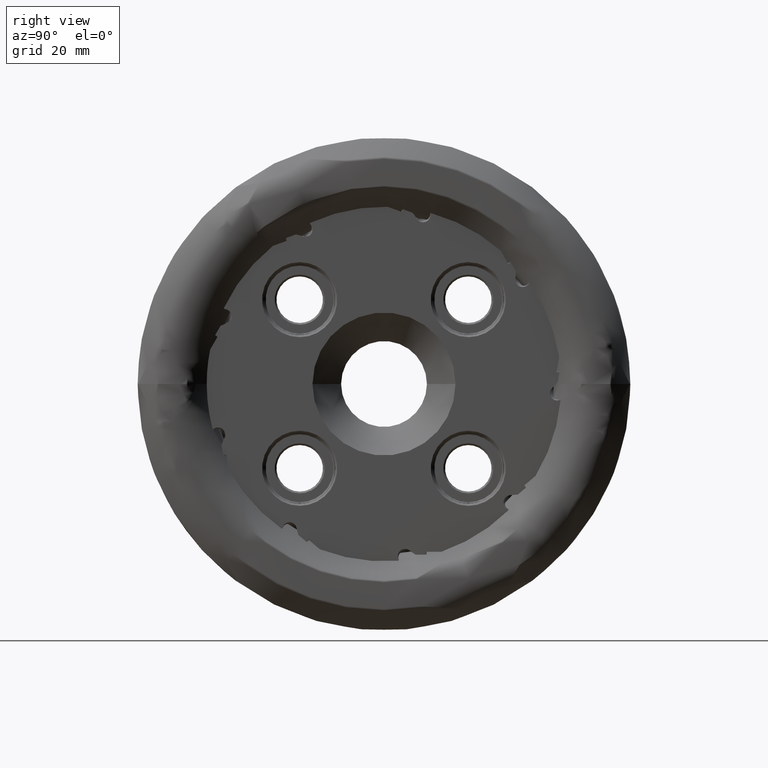
[diagram: clean part render]
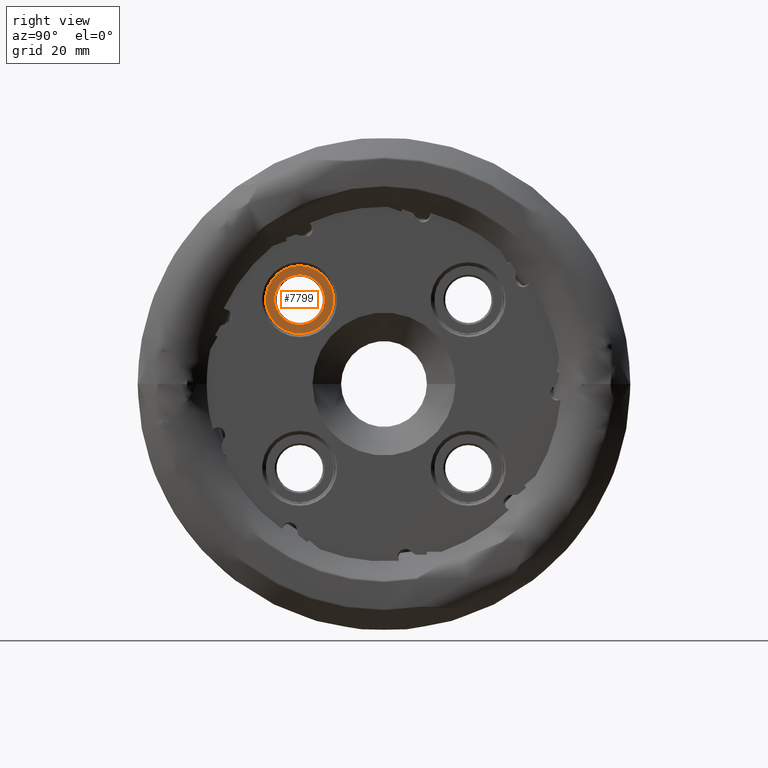
[diagram: same view with one face highlighted and labeled with its STEP entity id]
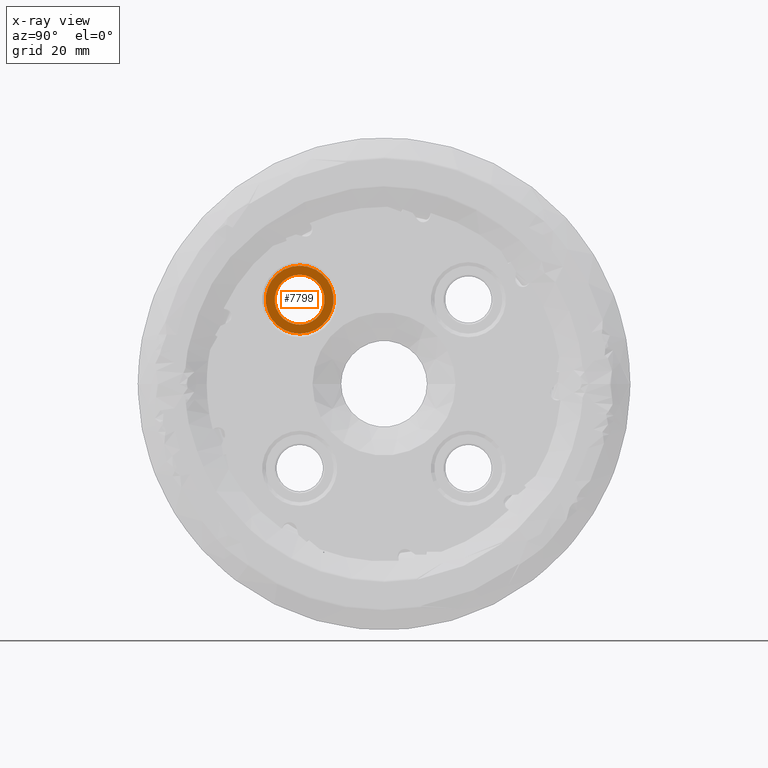
[diagram: x-ray of the same camera — body ghosted, the highlighted face saturated]
A machine part, right view. The second image highlights one B-rep face of the part: STEP entity #7799.
The next image is the same camera in x-ray: the body ghosted, the highlighted face saturated — about 0% of this face is hidden behind the body in this view.
In plain terms, the highlighted planar face has unit normal (1, -0, 0).
Its self-contained STEP definition (entity closure, byte-faithful):
#75 = EDGE_LOOP ( 'NONE', ( #22757, #6768 ) ) ;
#572 = FACE_OUTER_BOUND ( 'NONE', #75, .T. ) ;
#1079 = EDGE_CURVE ( 'NONE', #3592, #14188, #13568, .T. ) ;
#1130 = CARTESIAN_POINT ( 'NONE',  ( -33.00000000000000000, -23.58201115257148900, 23.58201115257123300 ) ) ;
#1588 = DIRECTION ( 'NONE',  ( 0.0000000000000000000, 0.0000000000000000000, -1.000000000000000000 ) ) ;
#2436 = DIRECTION ( 'NONE',  ( -1.224646799147348800E-016, -3.491483361109382100E-015, 1.000000000000000000 ) ) ;
#2745 = CARTESIAN_POINT ( 'NONE',  ( -33.00000000000000000, -23.58201115257148900, 33.08201115257117700 ) ) ;
#2902 = DIRECTION ( 'NONE',  ( 0.0000000000000000000, 0.0000000000000000000, -1.000000000000000000 ) ) ;
#3465 = CARTESIAN_POINT ( 'NONE',  ( -33.00000000000000000, -23.58201115257148900, 14.08201115257128000 ) ) ;
#3592 = VERTEX_POINT ( 'NONE', #11634 ) ;
#3807 = DIRECTION ( 'NONE',  ( -1.000000000000000000, 4.275833922458831400E-031, -1.224646799147348800E-016 ) ) ;
#4065 = CARTESIAN_POINT ( 'NONE',  ( -33.00000000000000000, -23.58201115257148900, 30.58201115257121200 ) ) ;
#6062 = CARTESIAN_POINT ( 'NONE',  ( -33.00000000000000000, -23.58201115257148900, 23.58201115257123000 ) ) ;
#6561 = VERTEX_POINT ( 'NONE', #2745 ) ;
#6768 = ORIENTED_EDGE ( 'NONE', *, *, #14704, .T. ) ;
#6925 = CIRCLE ( 'NONE', #19827, 9.499999999999950300 ) ;
#7799 = ADVANCED_FACE ( 'NONE', ( #18935, #572 ), #21822, .T. ) ;
#7841 = DIRECTION ( 'NONE',  ( 0.0000000000000000000, 0.0000000000000000000, -1.000000000000000000 ) ) ;
#8835 = ORIENTED_EDGE ( 'NONE', *, *, #1079, .T. ) ;
#9513 = AXIS2_PLACEMENT_3D ( 'NONE', #14455, #3807, #16251 ) ;
#10303 = EDGE_LOOP ( 'NONE', ( #8835, #13678 ) ) ;
#11287 = CARTESIAN_POINT ( 'NONE',  ( -33.00000000000000000, -23.58201115257148900, 23.58201115257123000 ) ) ;
#11634 = CARTESIAN_POINT ( 'NONE',  ( -33.00000000000000000, -23.58201115257148900, 16.58201115257125500 ) ) ;
#12222 = DIRECTION ( 'NONE',  ( 1.000000000000000000, -4.275833922458831400E-031, 1.224646799147348800E-016 ) ) ;
#13065 = DIRECTION ( 'NONE',  ( 1.000000000000000000, -4.275833922458831400E-031, 1.224646799147348800E-016 ) ) ;
#13339 = EDGE_CURVE ( 'NONE', #14188, #3592, #22940, .T. ) ;
#13541 = DIRECTION ( 'NONE',  ( -1.000000000000000000, 4.275833922458831400E-031, -1.224646799147348800E-016 ) ) ;
#13568 = CIRCLE ( 'NONE', #9513, 6.999999999999978700 ) ;
#13678 = ORIENTED_EDGE ( 'NONE', *, *, #13339, .T. ) ;
#13931 = CIRCLE ( 'NONE', #18683, 9.499999999999950300 ) ;
#14188 = VERTEX_POINT ( 'NONE', #4065 ) ;
#14455 = CARTESIAN_POINT ( 'NONE',  ( -33.00000000000000000, -23.58201115257148900, 23.58201115257123300 ) ) ;
#14704 = EDGE_CURVE ( 'NONE', #6561, #15375, #13931, .T. ) ;
#15375 = VERTEX_POINT ( 'NONE', #3465 ) ;
#16251 = DIRECTION ( 'NONE',  ( 0.0000000000000000000, 0.0000000000000000000, -1.000000000000000000 ) ) ;
#18506 = AXIS2_PLACEMENT_3D ( 'NONE', #1130, #13541, #2902 ) ;
#18514 = DIRECTION ( 'NONE',  ( 1.000000000000000000, -4.275833922458831400E-031, 1.224646799147348800E-016 ) ) ;
#18683 = AXIS2_PLACEMENT_3D ( 'NONE', #6062, #18514, #7841 ) ;
#18935 = FACE_BOUND ( 'NONE', #10303, .T. ) ;
#19827 = AXIS2_PLACEMENT_3D ( 'NONE', #22920, #12222, #1588 ) ;
#19941 = EDGE_CURVE ( 'NONE', #15375, #6561, #6925, .T. ) ;
#21822 = PLANE ( 'NONE',  #22459 ) ;
#22459 = AXIS2_PLACEMENT_3D ( 'NONE', #11287, #13065, #2436 ) ;
#22757 = ORIENTED_EDGE ( 'NONE', *, *, #19941, .T. ) ;
#22920 = CARTESIAN_POINT ( 'NONE',  ( -33.00000000000000000, -23.58201115257148900, 23.58201115257123000 ) ) ;
#22940 = CIRCLE ( 'NONE', #18506, 6.999999999999978700 ) ;